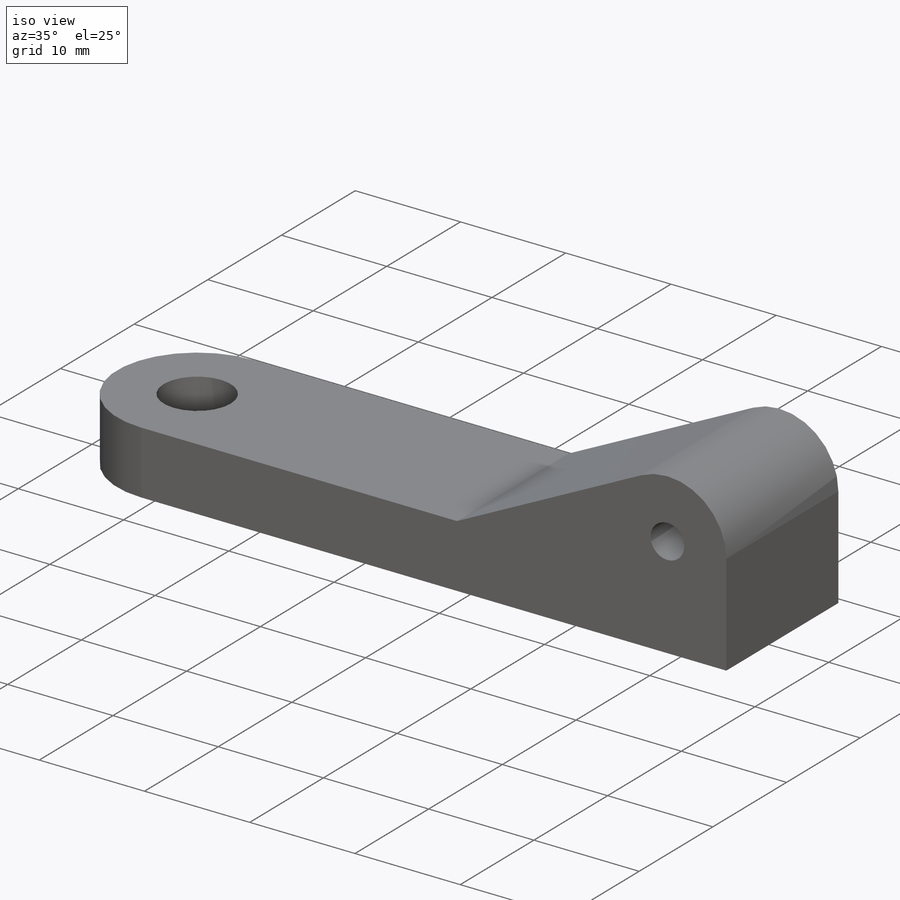
[diagram: iso view]
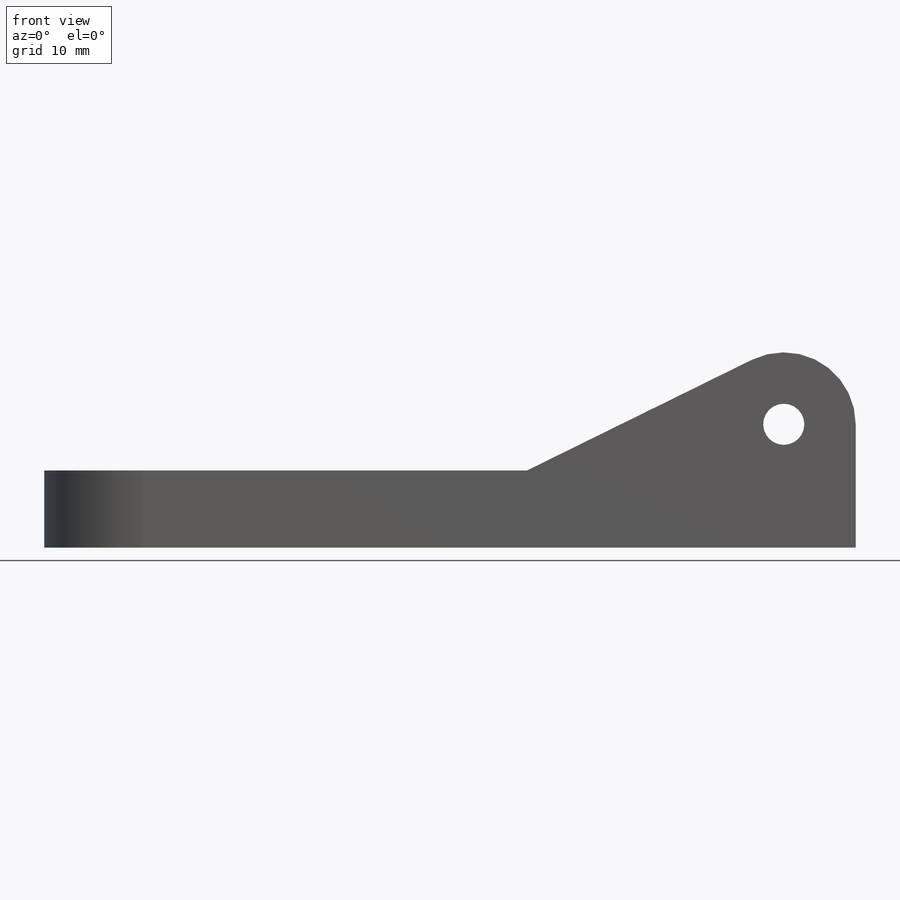
[diagram: front view]
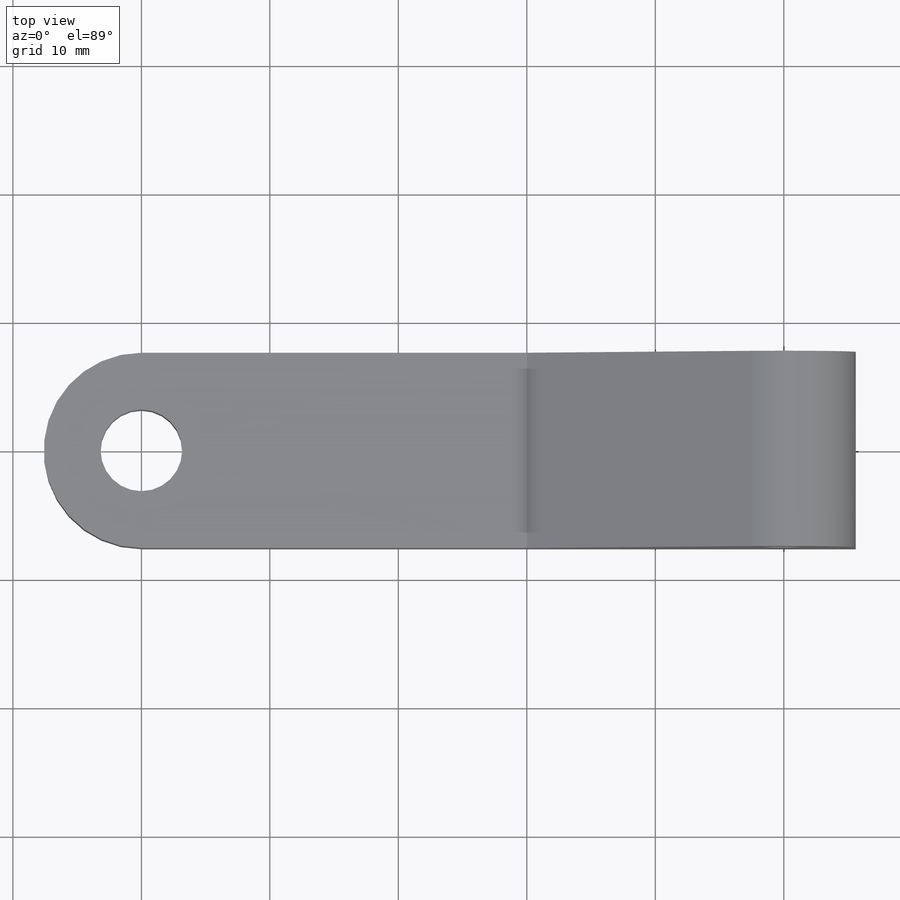
[diagram: top view]
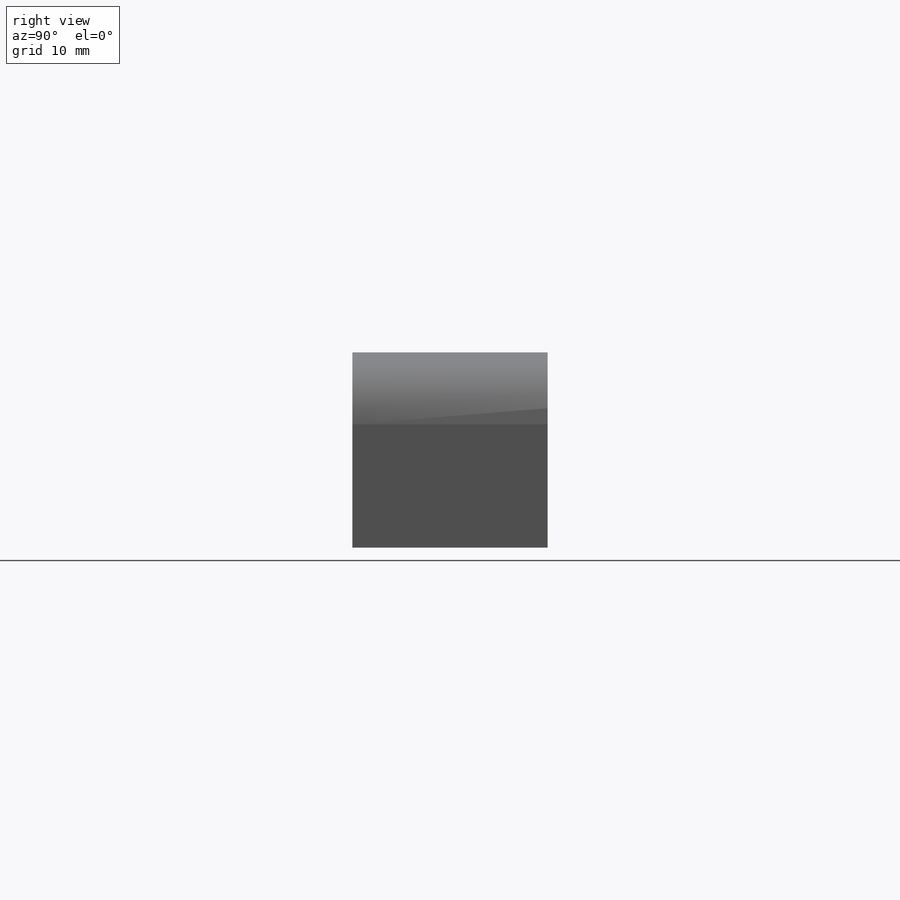
[diagram: right view]
SOLIDWORKS PART (.sldprt)
format: sldprt  version: not decoded by parser v0  size: 178,176 bytes
history: native  units: mm
features: sketch x3, extrude x3, material x1 (+16 scaffold rows collapsed)
feature tree (23):
  scaffold x16  (default folders/planes/origin — collapsed)
  material  "Material <not specified>"
  sketch  "Sketch1"  dims[D1=6.35mm D2=15.2mm D3=30.0mm]
  extrude  "Boss-Extrude1"  Depth=2mm
  sketch  "Sketch2"  dims[c1.D1=3.2mm c1.D2=~3.642942mm c1.D3=3.2mm c1.D6=3.2mm c2.D2=3.6mm c2.D3=50.0mm c2.D4=6.0mm c2.D5=5.0mm c3.D5=40.0deg c3.D6=4.0mm]
  extrude  "Boss-Extrude2"  Depth=15.2mm
  sketch  "Sketch3"  dims[c1.D2=1.0mm c1.D1=1.5mm c1.D3=1.5mm c2.D1=1.5mm]
  extrude  "Boss-Extrude3"  Depth=4mm
decode coverage: 6 of 6 modeling features carry decoded parameters
note: ~ marks probable driven/reference dimensions
note: suppression state not decoded; provenance and decode notes live in map.json
